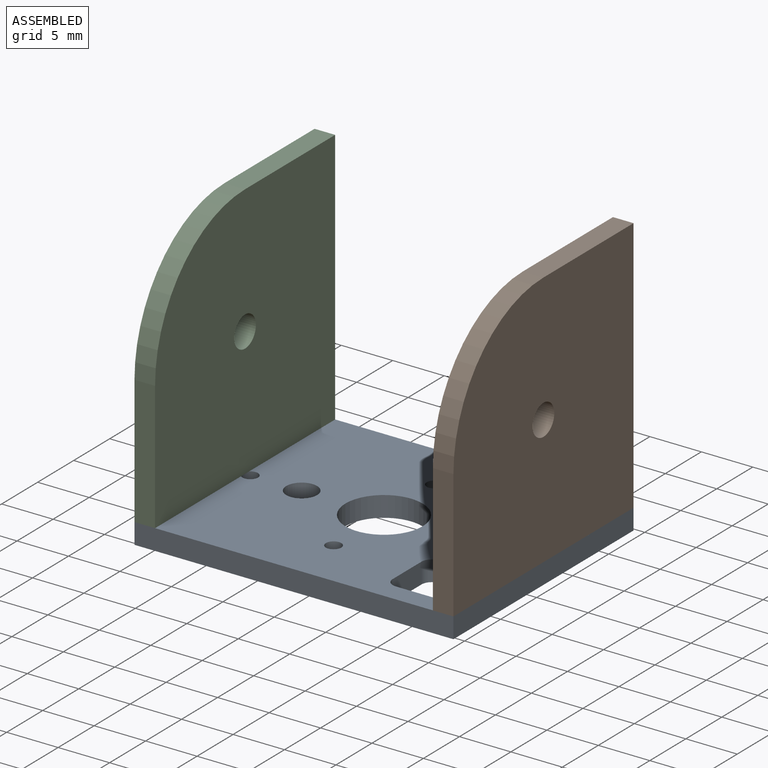
[diagram: assembled view]
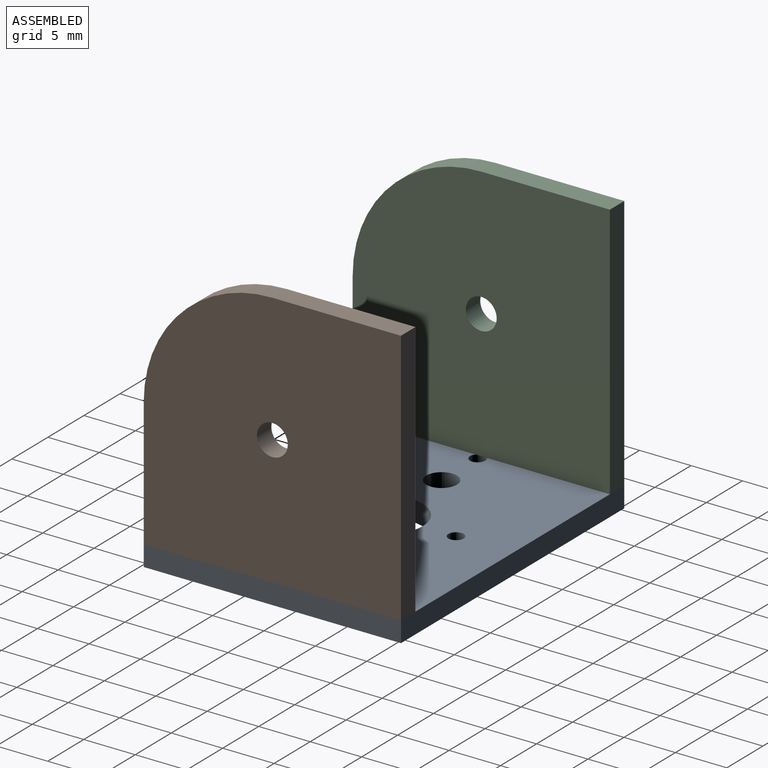
[diagram: assembled view, second angle]
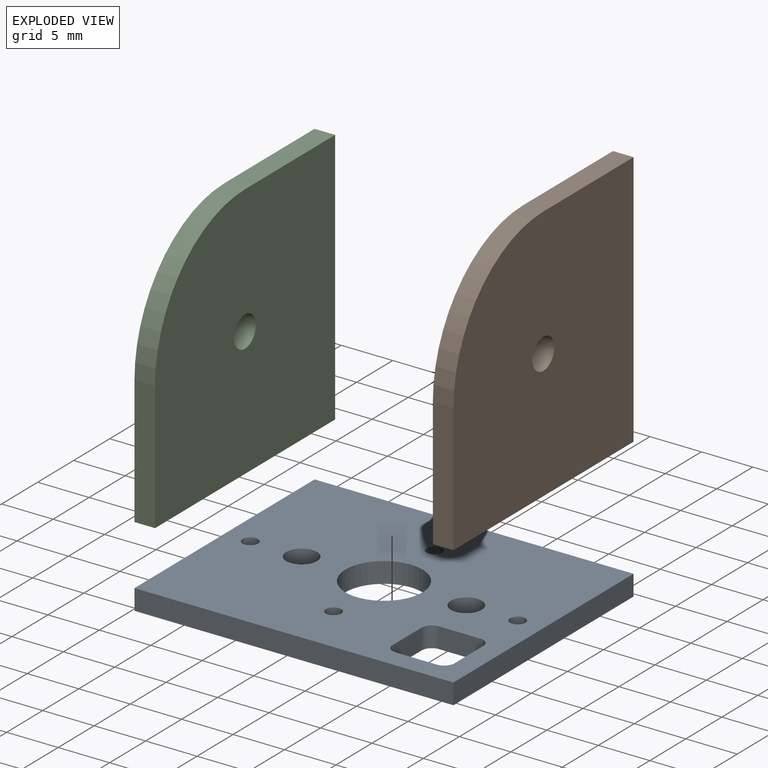
[diagram: exploded view]
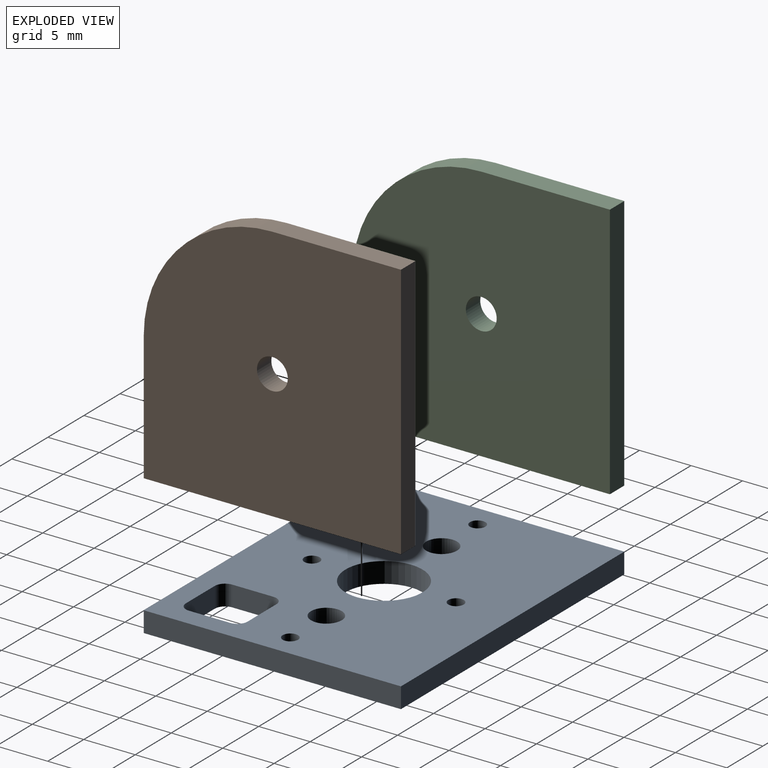
[diagram: exploded view, second angle]
ASSEMBLY  parts=3 mates=2
PART A: 21 faces, bbox 31x25x2 mm
  f0: cylinder r=1mm len=2mm, axis (0,0,-1), area 3.1mm2, adj f1,f16,f17,f18
  f1: plane 4x2mm, normal (0,-1,0), area 8mm2, adj f0,f2,f17,f18
  f2: cylinder r=1mm len=2mm, axis (0,0,-1), area 3.1mm2, adj f1,f3,f17,f18
  f3: plane 4x2mm, normal (-1,0,0), area 8mm2, adj f2,f4,f17,f18
  f4: cylinder r=1mm len=2mm, axis (0,0,-1), area 3.1mm2, adj f3,f5,f17,f18
  f5: plane 4x2mm, normal (0,1,0), area 8mm2, adj f4,f6,f17,f18
  f6: cylinder r=1mm len=2mm, axis (0,0,-1), area 3.1mm2, adj f5,f16,f17,f18
  f7: plane 25x2mm, normal (1,0,0), area 50mm2, adj f8,f15,f17,f18
  f8: plane 31x2mm, normal (0,1,0), area 62mm2, adj f7,f9,f17,f18
  f9: plane 25x2mm, normal (-1,0,0), area 50mm2, adj f8,f15,f17,f18
  f10: cylinder r=1.5mm len=3mm, axis (0,0,-1), area 18.8mm2, adj f17,f18
  f11: cylinder r=0.75mm len=2mm, axis (0,0,-1), area 9.4mm2, adj f17,f18
  f12: cylinder r=1.5mm len=3mm, axis (0,0,-1), area 18.8mm2, adj f17,f18
  f13: cylinder r=3.75mm len=7.5mm, axis (0,0,-1), area 47.1mm2, adj f17,f18
  f14: cylinder r=0.75mm len=2mm, axis (0,0,-1), area 9.4mm2, adj f17,f18
  f15: plane 31x2mm, normal (0,-1,0), area 62mm2, adj f7,f9,f17,f18
  f16: plane 4x2mm, normal (1,0,0), area 8mm2, adj f0,f6,f17,f18
  f17: plane 31x25mm, normal (0,0,1), area 674.5mm2, adj f0,f1,f2,f3,f4,f5,f6,f7
  f18: plane 31x25mm, normal (0,0,-1), area 674.5mm2, adj f0,f1,f2,f3,f4,f5,f6,f7
  f19: cylinder r=0.75mm len=2mm, axis (0,0,1), area 9.4mm2, adj f17,f18
  f20: cylinder r=0.75mm len=2mm, axis (0,0,1), area 9.4mm2, adj f17,f18
PART B: 8 faces, bbox 25x25x2 mm
  f0: plane 12.5x2mm, normal (0,-1,0), area 25mm2, adj f1,f5,f6,f7
  f1: plane 25x2mm, normal (1,0,0), area 50mm2, adj f0,f2,f6,f7
  f2: plane 25x2mm, normal (0,1,0), area 50mm2, adj f1,f3,f6,f7
  f3: plane 12.5x2mm, normal (-1,0,0), area 25mm2, adj f2,f5,f6,f7
  f4: cylinder r=1.5mm len=3mm, axis (0,0,-1), area 18.8mm2, adj f6,f7
  f5: cylinder r=12.5mm len=12.5mm, axis (0,0,-1), area 39.3mm2, adj f0,f3,f6,f7
  f6: plane 25x25mm, normal (0,0,1), area 584.4mm2, adj f0,f1,f2,f3,f4,f5
  f7: plane 25x25mm, normal (0,0,-1), area 584.4mm2, adj f0,f1,f2,f3,f4,f5
PART C: same geometry as B
PLACE A t=(-23.89,3.3,-17.96)mm
PLACE B rot(axis=(0,1,0),90deg) t=(5.11,3.3,9.04)mm
PLACE C rot(axis=(0,1,0),90deg) t=(-23.89,3.3,9.04)mm
MATE fastened A.f17 <-> B.f1  axis (0,0,1) through (7.11,28.3,-15.96)mm
MATE fastened A.f17 <-> C.f1  axis (0,0,1) through (-23.89,3.3,-15.96)mm
